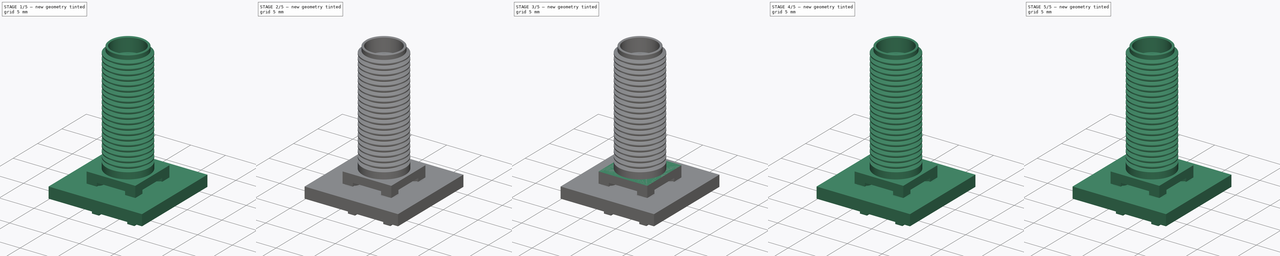
[diagram: build sequence overview — one tinted view per stage of 5, left to right]
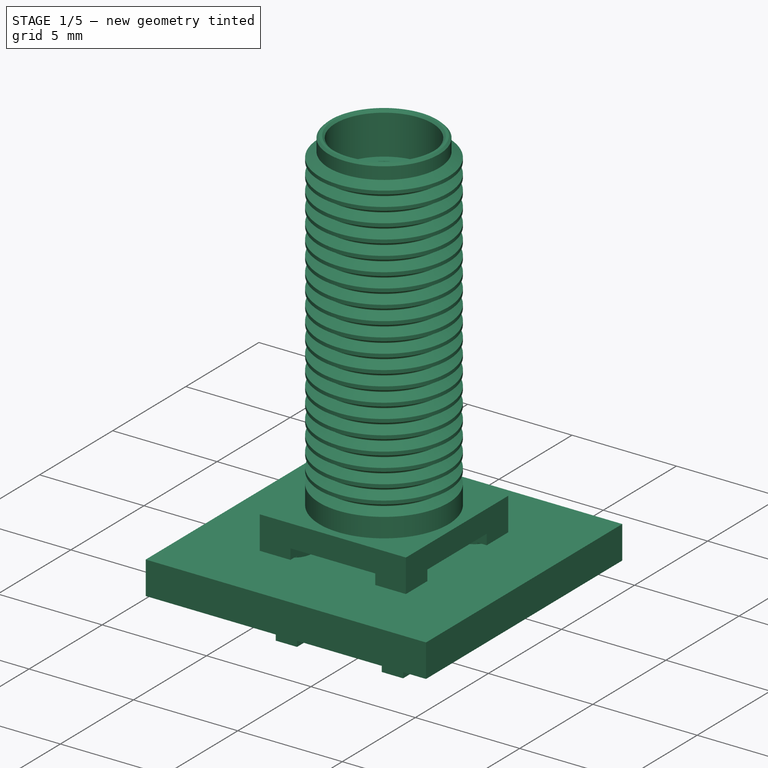
[diagram: stage 1 of 5 — iso view after this stage's code; geometry added in this stage tinted green]
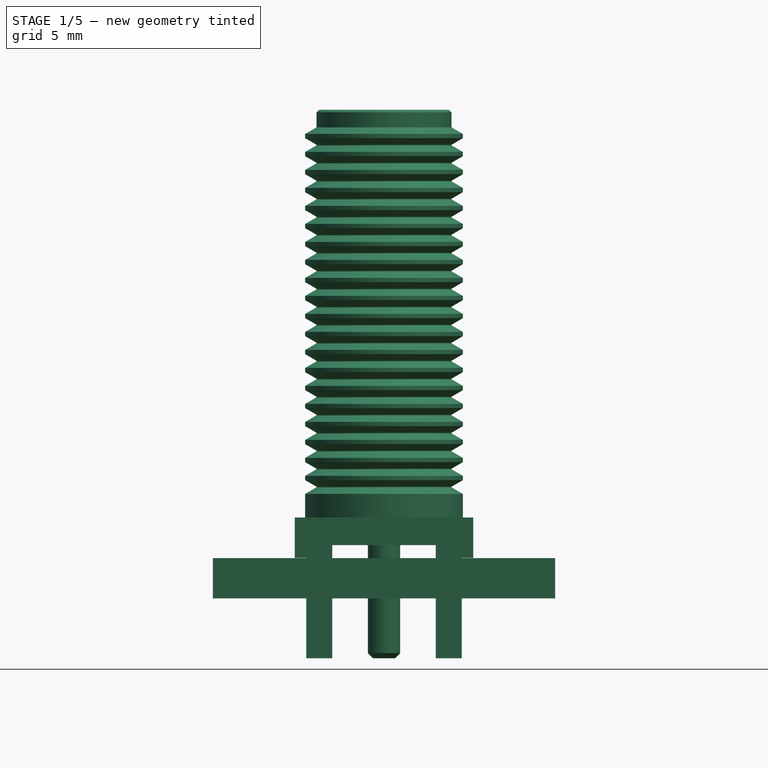
[diagram: stage 1 of 5 — front view after this stage's code; geometry added in this stage tinted green]
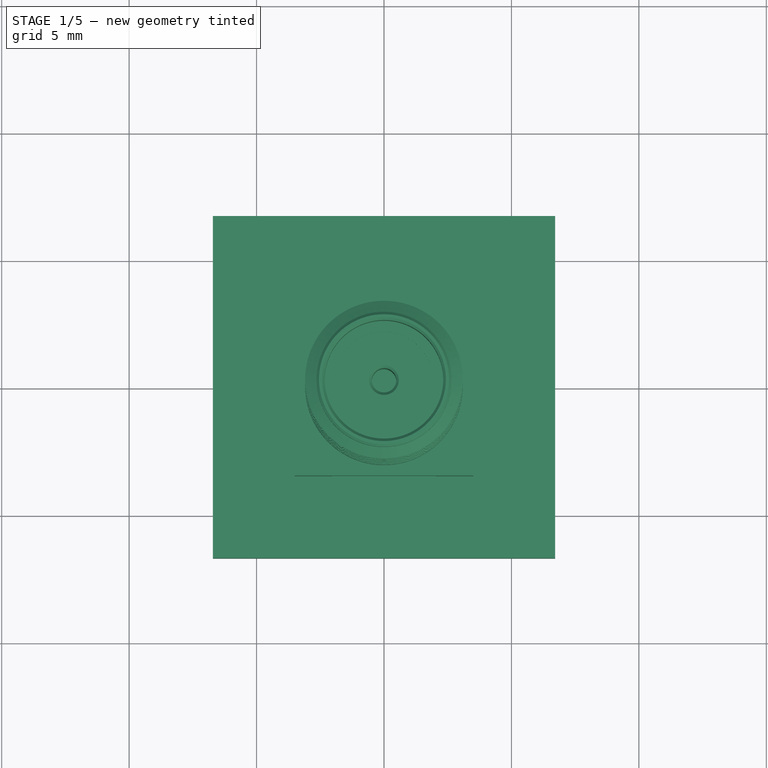
[diagram: stage 1 of 5 — top view after this stage's code; geometry added in this stage tinted green]
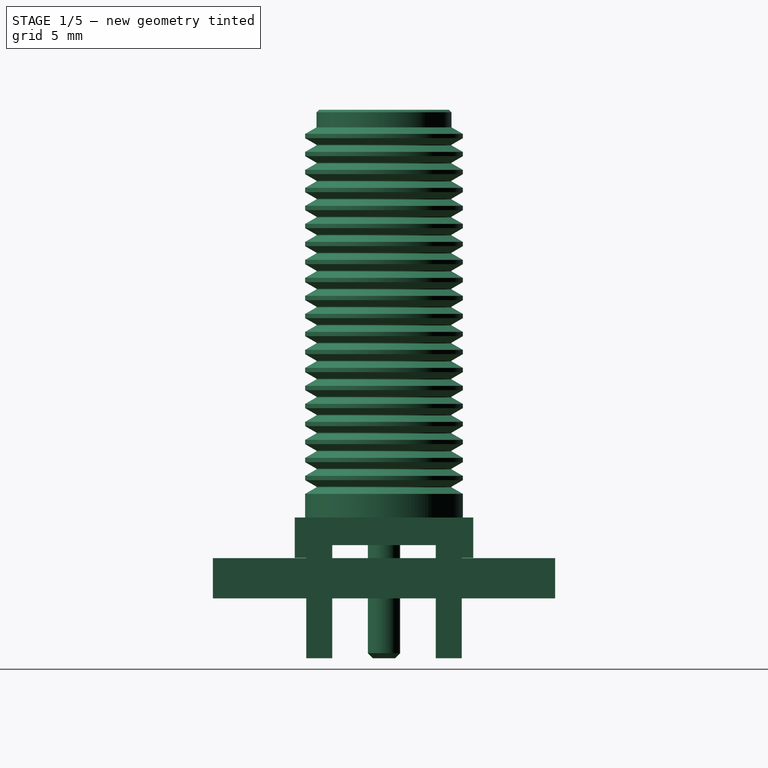
[diagram: stage 1 of 5 — right view after this stage's code; geometry added in this stage tinted green]
FCSTD DOCUMENT  (FreeCAD 0.17R13519 (Git))
Label: SMA_Amphenol_132291_Vertical
License: All rights reserved
LicenseURL: http://en.wikipedia.org/wiki/All_rights_reserved
objects: Sketcher::SketchObject×9, Part::FeaturePython×7, PartDesign::Pad×5, Part::Feature×4, PartDesign::Chamfer×3, PartDesign::Body×3, PartDesign::Pocket×2, PartDesign::Revolution×2, PartDesign::ShapeBinder×2, PartDesign::PolarPattern×1, App::Part×1, App::DocumentObjectGroup×1, Part::Compound×1, Part::MultiFuse×1
note: 49 computed .brp shape members not serialized (recipe doc carries the construction recipe); baked Part::Feature solids carry a one-line shape summary decoded from their .brp

FEATURE [Part::FeaturePython] THPs  label="PTHs"  # a2plus imported part (geometry in sourceFile) (typed FeaturePython)
  fixedPosition = true
FEATURE [Part::FeaturePython] newPCB  label="Pcb"  # a2plus imported part (geometry in sourceFile) (typed FeaturePython)
  fixedPosition = true
FEATURE [App::DocumentObjectGroup] SMA_Amphenol_132291_Vertical_fp
  Group = -> [FCrtYd_lines,FFab_lines,Filk_lines,TopPads,BotPads,THPs,newPCB]
FEATURE [Part::Feature] Revolution001_cp
  shape: bbox 7 x 7 x 21.52 mm, 138 faces (baked)
FEATURE [Part::Feature] Pad003_cp
  shape: bbox 4.06 x 4.06 x 0.1 mm, 4 faces (baked)
FEATURE [Part::Feature] Pad004_cp
  shape: bbox 3.8 x 3.8 x 0.5 mm, 4 faces (baked)
FEATURE [Part::Compound] SMA_Amphenol_132291_Vertical_Source_cp
  Links = -> [Revolution001_cp,Pad003_cp,Pad004_cp]
FEATURE [Part::MultiFuse] SMA_Amphenol_132291_Vertical_Source_mp_cp  label="SMA_Amphenol_132291_Vertical_Source_fd"
  Shapes = -> [SMA_Amphenol_132291_Vertical_Source_cp]
FEATURE [Part::Feature] Shape  label="SMA_Amphenol_132291_Vertical"
  shape: bbox 7 x 7 x 21.52 mm, 137 faces (baked)
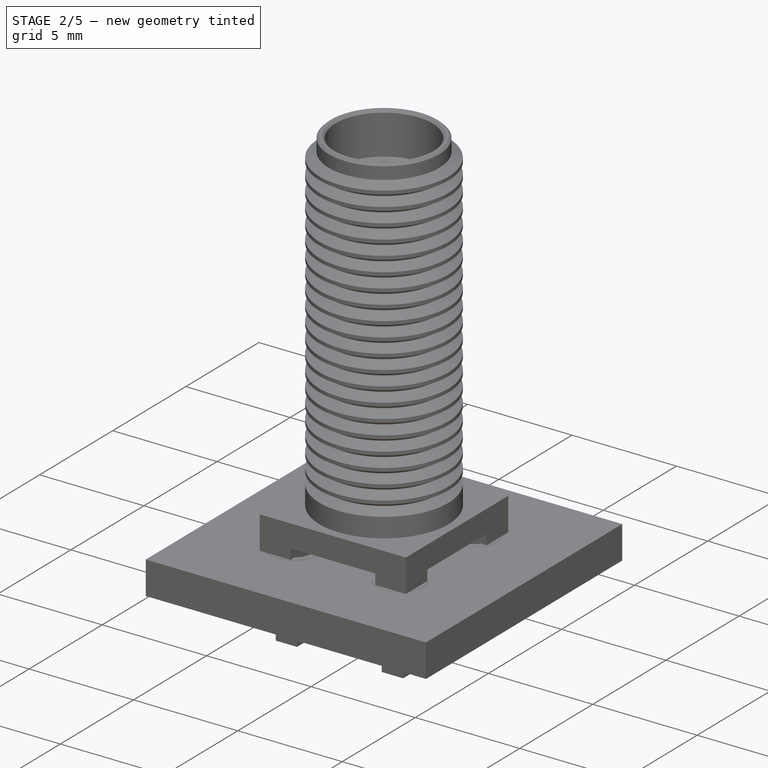
[diagram: stage 2 of 5 — iso view after this stage's code; geometry added in this stage tinted green]
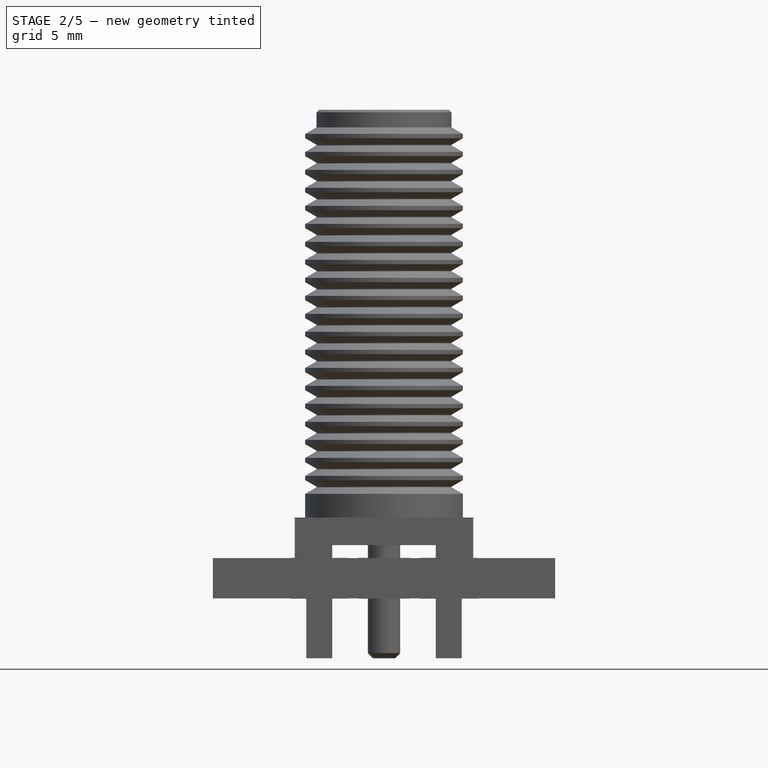
[diagram: stage 2 of 5 — front view after this stage's code; geometry added in this stage tinted green]
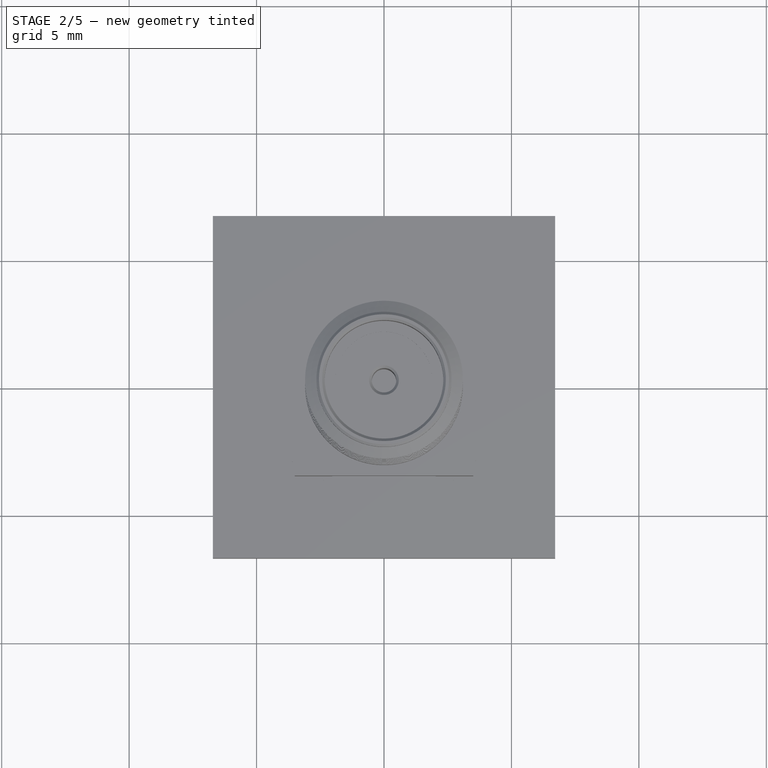
[diagram: stage 2 of 5 — top view after this stage's code; geometry added in this stage tinted green]
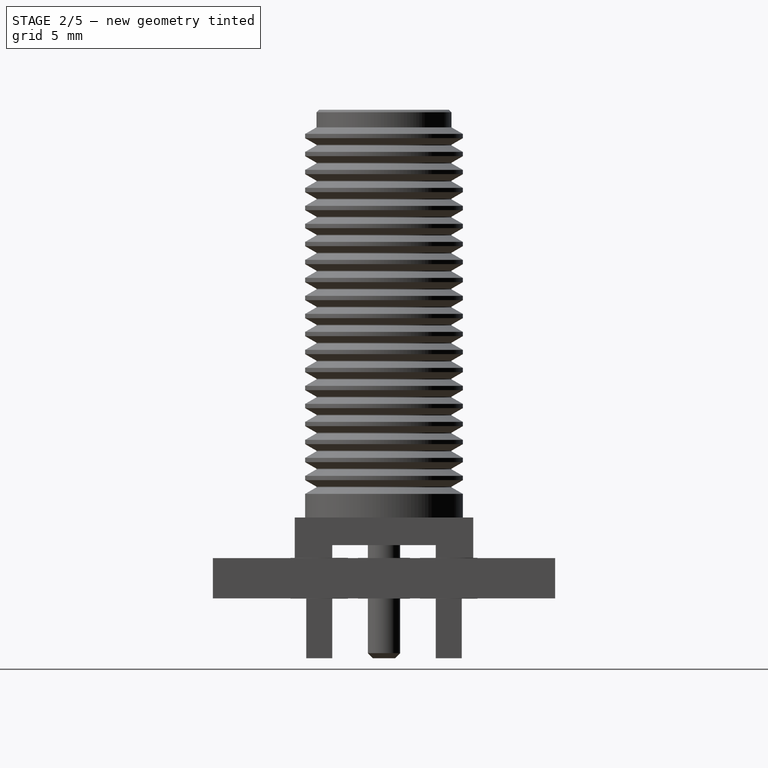
[diagram: stage 2 of 5 — right view after this stage's code; geometry added in this stage tinted green]
FEATURE [PartDesign::Body] Body  label="Metal"
  Group = -> [Sketch,Pad,Sketch001,Pocket,Sketch002,Pad001,PolarPattern,Sketch003,Pocket001,Sketch004,Pad002,Chamfer,Sketch005,Revolution,Chamfer001,Chamfer002,Sketch006,Revolution001]
  Origin = -> Origin
  Tip = -> Revolution001
FEATURE [PartDesign::ShapeBinder] CopyRevolution001
FEATURE [Sketcher::SketchObject] Sketch007
  ExternalGeometry = -> [CopyRevolution001]
  MapMode = 5
  Placement = pos=(0,0,0.7) rot=(1,0,0;3.14159rad)
  Support = -> [CopyRevolution001]
  sketch-geometry (2):
    g0: Circle CenterX=0 CenterY=0 CenterZ=0 NormalX=0 NormalY=0 NormalZ=1 AngleXU=0 Radius=0.635
    g1: Circle CenterX=0 CenterY=0 CenterZ=0 NormalX=0 NormalY=0 NormalZ=1 AngleXU=0 Radius=2.03
  constraints (4):
    c: Coincident(g0,g-1)
    c: Coincident(g1,g0)
    c: Equal(g0,g-3)
    c: Equal(g1,g-4)
FEATURE [PartDesign::Pad] Pad003
  Length = 0.1
  Length2 = 100
  Profile = -> Sketch007
  Type = 0
FEATURE [PartDesign::Body] Body001  label="Plastic_Bottom"
  Group = -> [CopyRevolution001,Sketch007,Pad003]
  Origin = -> Origin002
  Tip = -> Pad003
FEATURE [PartDesign::ShapeBinder] CopyRevolution001001
FEATURE [Sketcher::SketchObject] Sketch008
  ExternalGeometry = -> [CopyRevolution001001]
  MapMode = 5
  Placement = pos=(0,0,14.96) rot=(0,0,1;0rad)
  Support = -> [CopyRevolution001001]
  sketch-geometry (2):
    g0: Circle CenterX=0 CenterY=0 CenterZ=0 NormalX=0 NormalY=0 NormalZ=1 AngleXU=0 Radius=0.63
    g1: Circle CenterX=0 CenterY=0 CenterZ=0 NormalX=0 NormalY=0 NormalZ=1 AngleXU=0 Radius=1.9
  constraints (4):
    c: Coincident(g0,g-1)
    c: Coincident(g1,g0)
    c: Equal(g0,g-3)
    c: Equal(g1,g-4)
FEATURE [PartDesign::Pad] Pad004
  Length = 0.5
  Length2 = 100
  Profile = -> Sketch008
  Type = 0
FEATURE [PartDesign::Body] Body002  label="Plastic_Top"
  Group = -> [CopyRevolution001001,Sketch008,Pad004]
  Origin = -> Origin003
  Tip = -> Pad004
FEATURE [App::Part] Part  label="SMA_Amphenol_132291_Vertical_Source"
  Group = -> [Body,Body001,Body002]
  License = CC BY 3.0
  LicenseURL = http://creativecommons.org/licenses/by/3.0/
  Origin = -> Origin004
FEATURE [Part::FeaturePython] FCrtYd_lines  label="FCrtYd"  # a2plus imported part (geometry in sourceFile) (typed FeaturePython)
  fixedPosition = true
FEATURE [Part::FeaturePython] FFab_lines  label="FFab"  # a2plus imported part (geometry in sourceFile) (typed FeaturePython)
  fixedPosition = true
FEATURE [Part::FeaturePython] Filk_lines  label="FrontSilk"  # a2plus imported part (geometry in sourceFile) (typed FeaturePython)
  fixedPosition = true
FEATURE [Part::FeaturePython] TopPads  # a2plus imported part (geometry in sourceFile) (typed FeaturePython)
  fixedPosition = true
FEATURE [Part::FeaturePython] BotPads  # a2plus imported part (geometry in sourceFile) (typed FeaturePython)
  fixedPosition = true
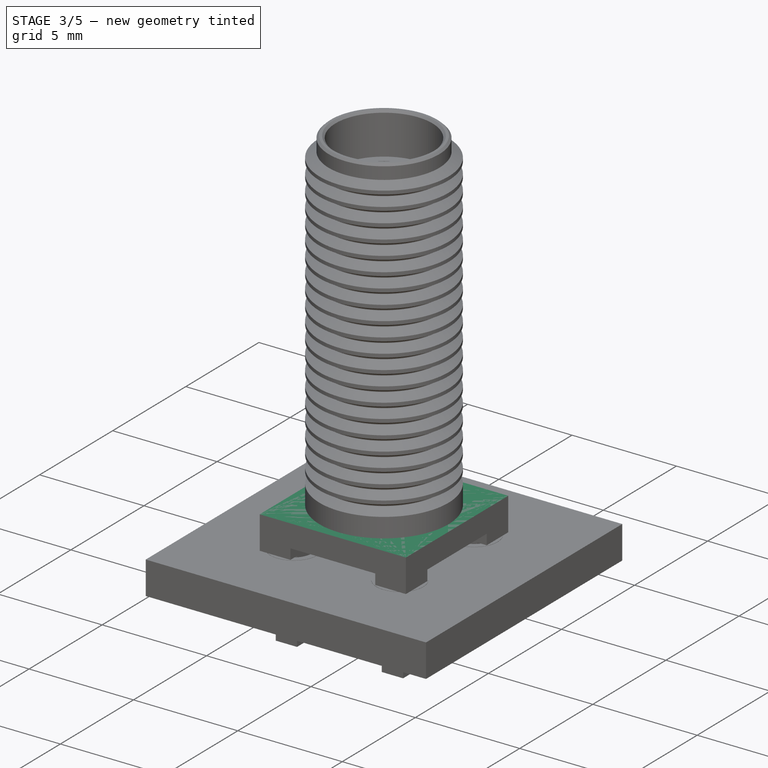
[diagram: stage 3 of 5 — iso view after this stage's code; geometry added in this stage tinted green]
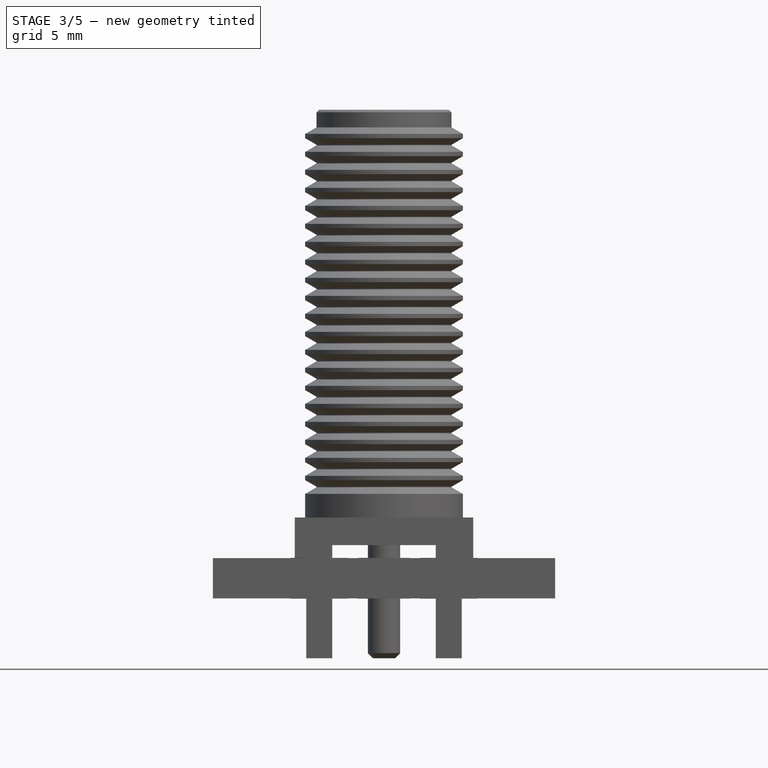
[diagram: stage 3 of 5 — front view after this stage's code; geometry added in this stage tinted green]
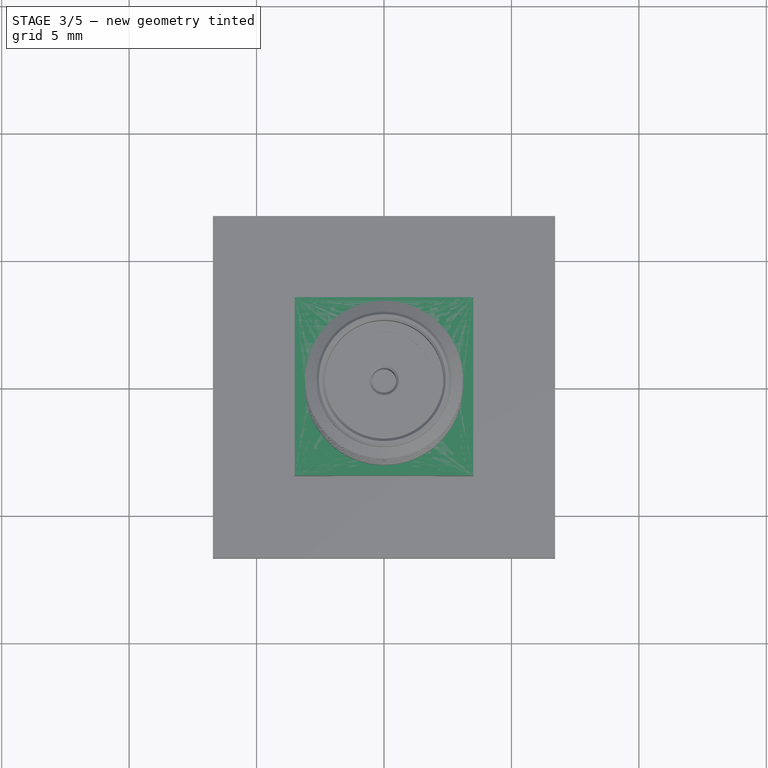
[diagram: stage 3 of 5 — top view after this stage's code; geometry added in this stage tinted green]
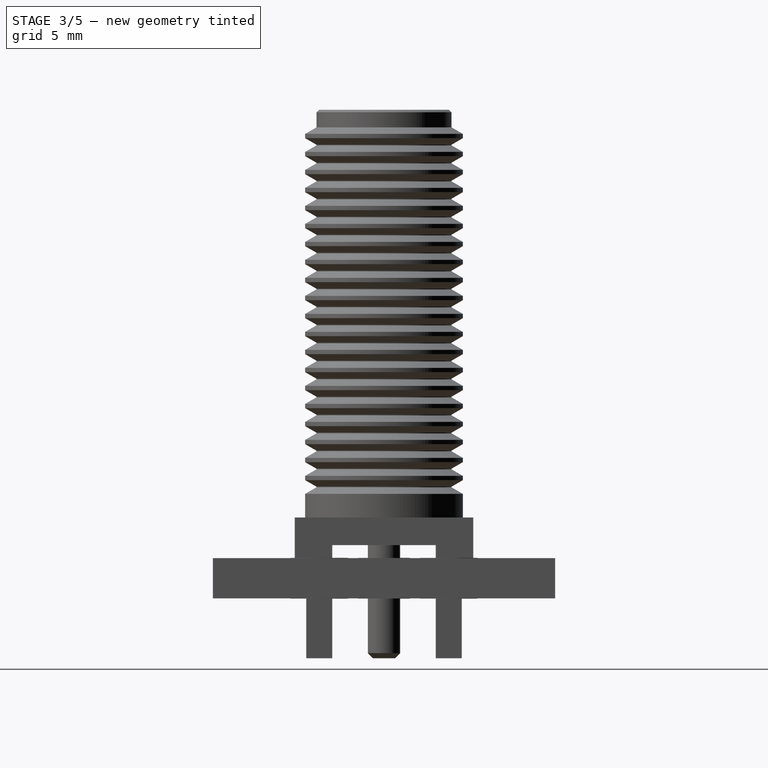
[diagram: stage 3 of 5 — right view after this stage's code; geometry added in this stage tinted green]
FEATURE [Sketcher::SketchObject] Sketch
  MapMode = 5
  Support = -> [XY_Plane]
  sketch-geometry (4):
    g0: LineSegment StartX=-3.5 StartY=3.5 StartZ=0 EndX=3.5 EndY=3.5 EndZ=0
    g1: LineSegment StartX=3.5 StartY=3.5 StartZ=0 EndX=3.5 EndY=-3.5 EndZ=0
    g2: LineSegment StartX=3.5 StartY=-3.5 StartZ=0 EndX=-3.5 EndY=-3.5 EndZ=0
    g3: LineSegment StartX=-3.5 StartY=-3.5 StartZ=0 EndX=-3.5 EndY=3.5 EndZ=0
  constraints (12):
    c: Coincident(g0,g1)
    c: Coincident(g1,g2)
    c: Coincident(g2,g3)
    c: Coincident(g3,g0)
    c: Horizontal(g0)
    c: Horizontal(g2)
    c: Vertical(g1)
    c: Vertical(g3)
    c: Symmetric(g0,g0,g-2)
    c: Symmetric(g2,g0,g-1)
    c: Equal(g0,g3)
    c: DistanceY(g3,g3) = 7
FEATURE [PartDesign::Pad] Pad  label="base"
  Length = 1.58
  Length2 = 100
  Profile = -> Sketch
  Type = 0
FEATURE [Sketcher::SketchObject] Sketch001
  ExternalGeometry = -> [Pad]
  MapMode = 5
  Placement = pos=(0,0,0) rot=(1,0,0;3.14159rad)
  Support = -> [Pad]
  sketch-geometry (12):
    g0: LineSegment StartX=-3.5 StartY=2.03 StartZ=0 EndX=-2.03 EndY=2.03 EndZ=0
    g1: LineSegment StartX=-2.03 StartY=2.03 StartZ=0 EndX=-2.03 EndY=3.5 EndZ=0
    g2: LineSegment StartX=-2.03 StartY=3.5 StartZ=0 EndX=2.03 EndY=3.5 EndZ=0
    g3: LineSegment StartX=2.03 StartY=3.5 StartZ=0 EndX=2.03 EndY=2.03 EndZ=0
    g4: LineSegment StartX=2.03 StartY=2.03 StartZ=0 EndX=3.5 EndY=2.03 EndZ=0
    g5: LineSegment StartX=3.5 StartY=2.03 StartZ=0 EndX=3.5 EndY=-2.03 EndZ=0
    g6: LineSegment StartX=3.5 StartY=-2.03 StartZ=0 EndX=2.03 EndY=-2.03 EndZ=0
    g7: LineSegment StartX=2.03 StartY=-2.03 StartZ=0 EndX=2.03 EndY=-3.5 EndZ=0
    g8: LineSegment StartX=2.03 StartY=-3.5 StartZ=0 EndX=-2.03 EndY=-3.5 EndZ=0
    g9: LineSegment StartX=-2.03 StartY=-3.5 StartZ=0 EndX=-2.03 EndY=-2.03 EndZ=0
    g10: LineSegment StartX=-2.03 StartY=-2.03 StartZ=0 EndX=-3.5 EndY=-2.03 EndZ=0
    g11: LineSegment StartX=-3.5 StartY=-2.03 StartZ=0 EndX=-3.5 EndY=2.03 EndZ=0
  constraints (36):
    c: Coincident(g0,g1)
    c: Vertical(g1)
    c: Coincident(g1,g2)
    c: Horizontal(g2)
    c: Coincident(g2,g3)
    c: Coincident(g3,g4)
    c: Coincident(g4,g5)
    c: Vertical(g5)
    c: Coincident(g5,g6)
    c: Coincident(g6,g7)
    c: Vertical(g7)
    c: Coincident(g7,g8)
    c: Horizontal(g8)
    c: Coincident(g8,g9)
    c: Vertical(g9)
    c: Coincident(g9,g10)
    c: Horizontal(g10)
    c: Coincident(g10,g11)
    c: Coincident(g11,g0)
    c: Vertical(g11)
    c: Vertical(g3)
    c: Horizontal(g0)
    c: Horizontal(g4)
    c: Horizontal(g6)
    c: PointOnObject(g0,g-4)
    c: PointOnObject(g1,g-3)
    c: PointOnObject(g4,g-5)
    c: PointOnObject(g7,g-6)
    c: Equal(g0,g1)
    c: Equal(g1,g3)
    c: Equal(g3,g4)
    c: Equal(g4,g6)
    c: Equal(g6,g7)
    c: Equal(g7,g9)
    c: Equal(g9,g10)
    c: DistanceY(g1,g1) = 1.47
FEATURE [PartDesign::Pocket] Pocket  label="Cross_Pocket"
  BaseFeature = -> Pad
  Length = 0.5
  Length2 = 100
  Profile = -> Sketch001
  Type = 0
FEATURE [Sketcher::SketchObject] Sketch002
  ExternalGeometry = -> [Pocket]
  MapMode = 5
  Placement = pos=(0,0,0) rot=(1,0,0;3.14159rad)
  Support = -> [Pocket]
  sketch-geometry (4):
    g0: LineSegment StartX=-2.03 StartY=2.03 StartZ=0 EndX=-3.05 EndY=2.03 EndZ=0
    g1: LineSegment StartX=-3.05 StartY=2.03 StartZ=0 EndX=-3.05 EndY=3.05 EndZ=0
    g2: LineSegment StartX=-3.05 StartY=3.05 StartZ=0 EndX=-2.03 EndY=3.05 EndZ=0
    g3: LineSegment StartX=-2.03 StartY=3.05 StartZ=0 EndX=-2.03 EndY=2.03 EndZ=0
  constraints (11):
    c: Coincident(g0,g1)
    c: Coincident(g1,g2)
    c: Coincident(g2,g3)
    c: Coincident(g3,g0)
    c: Horizontal(g0)
    c: Horizontal(g2)
    c: Vertical(g1)
    c: Vertical(g3)
    c: Coincident(g0,g-4)
    c: Equal(g2,g1)
    c: DistanceY(g1,g1) = 1.02
FEATURE [PartDesign::Pad] Pad001
  BaseFeature = -> Pocket
  Length = 3.94
  Length2 = 100
  Profile = -> Sketch002
  Type = 0
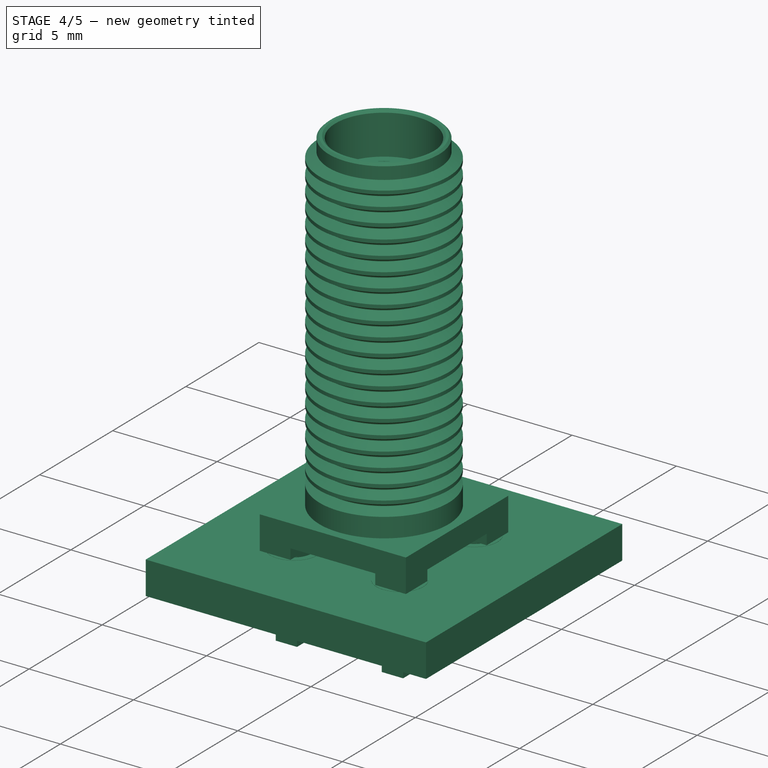
[diagram: stage 4 of 5 — iso view after this stage's code; geometry added in this stage tinted green]
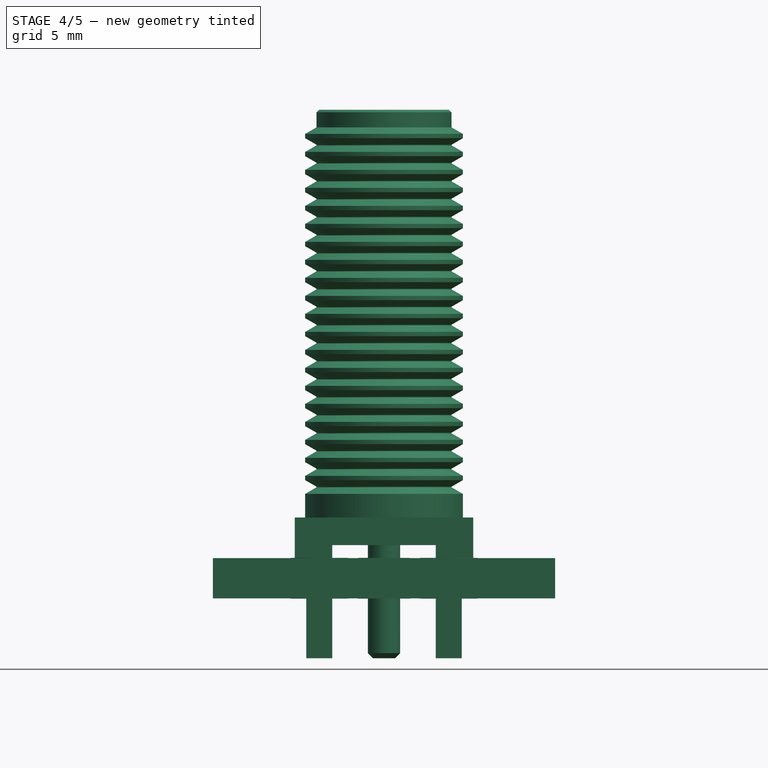
[diagram: stage 4 of 5 — front view after this stage's code; geometry added in this stage tinted green]
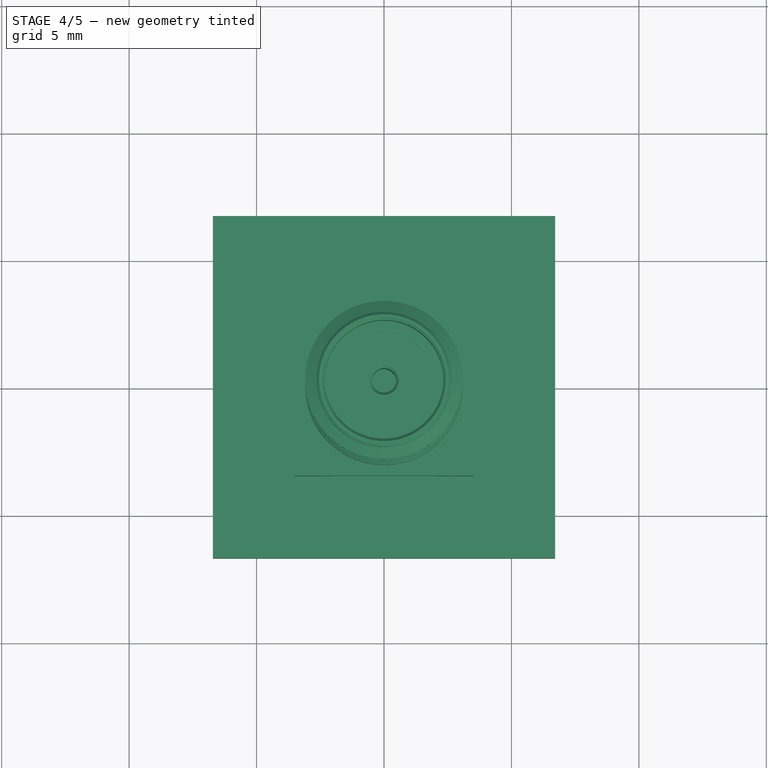
[diagram: stage 4 of 5 — top view after this stage's code; geometry added in this stage tinted green]
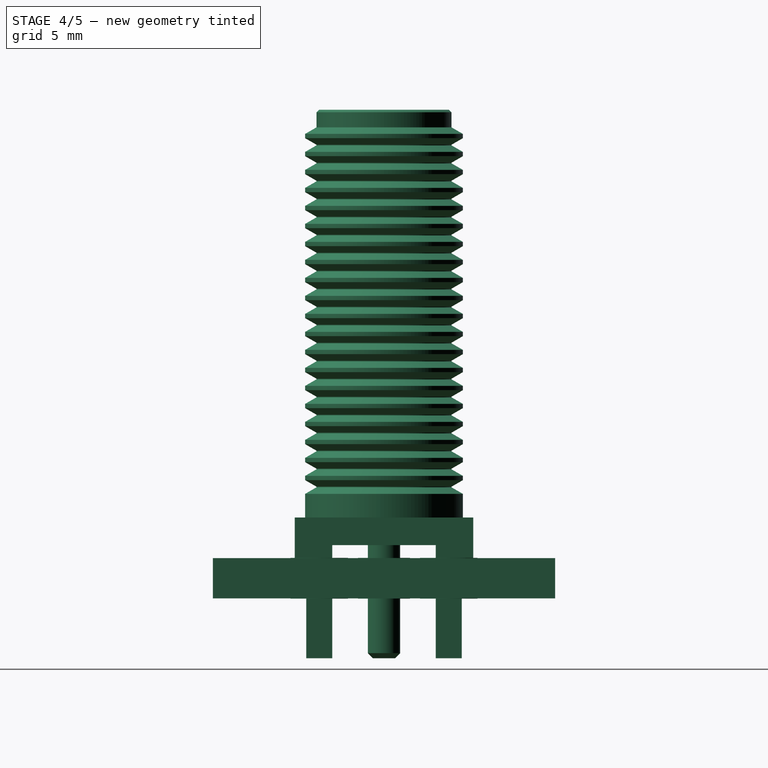
[diagram: stage 4 of 5 — right view after this stage's code; geometry added in this stage tinted green]
FEATURE [PartDesign::PolarPattern] PolarPattern
  Angle = 360
  Axis = -> Sketch002 [N_Axis]
  BaseFeature = -> Pad001
  Occurrences = 4
  Originals = -> [Pad001]
FEATURE [Sketcher::SketchObject] Sketch003
  MapMode = 5
  Placement = pos=(0,0,0.5) rot=(1,0,0;3.14159rad)
  Support = -> [PolarPattern]
  sketch-geometry (1):
    g0: Circle CenterX=0 CenterY=0 CenterZ=0 NormalX=0 NormalY=0 NormalZ=1 AngleXU=0 Radius=2.03
  constraints (2):
    c: Coincident(g0,g-1)
    c: Radius(g0) = 2.03
FEATURE [PartDesign::Pocket] Pocket001
  BaseFeature = -> PolarPattern
  Length = 0.2
  Length2 = 100
  Profile = -> Sketch003
  Type = 0
FEATURE [Sketcher::SketchObject] Sketch004
  MapMode = 5
  Placement = pos=(0,0,0.7) rot=(1,0,0;3.14159rad)
  Support = -> [Pocket001]
  sketch-geometry (1):
    g0: Circle CenterX=0 CenterY=0 CenterZ=0 NormalX=0 NormalY=0 NormalZ=1 AngleXU=0 Radius=0.635
  constraints (2):
    c: Coincident(g0,g-1)
    c: Radius(g0) = 0.635
FEATURE [PartDesign::Pad] Pad002
  BaseFeature = -> Pocket001
  Length = 4.64
  Length2 = 100
  Profile = -> Sketch004
  Type = 0
FEATURE [PartDesign::Chamfer] Chamfer
  Base = -> Pad002 [Edge102]
  BaseFeature = -> Pad002
  Size = 0.2
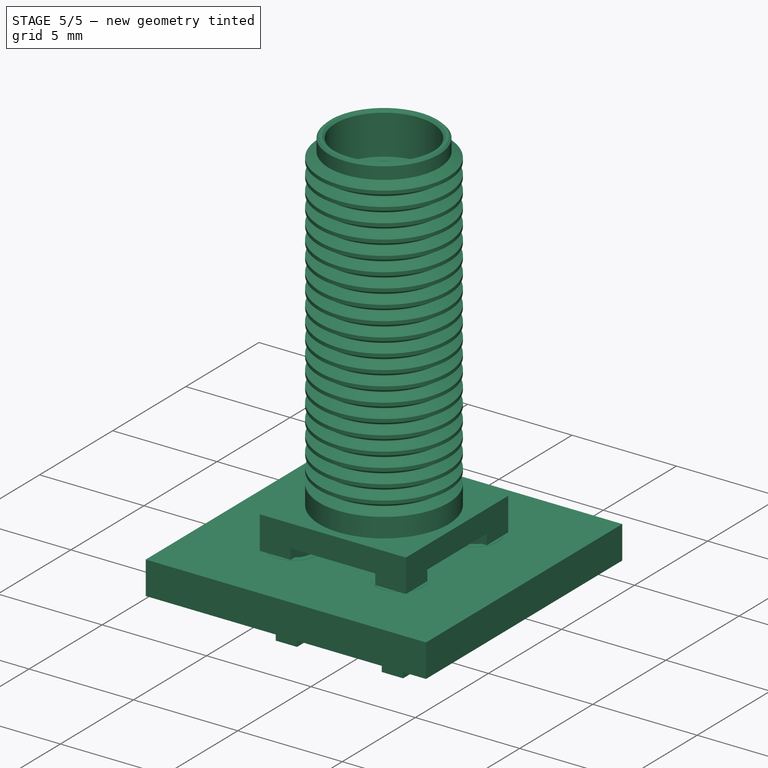
[diagram: stage 5 of 5 — iso view after this stage's code; geometry added in this stage tinted green]
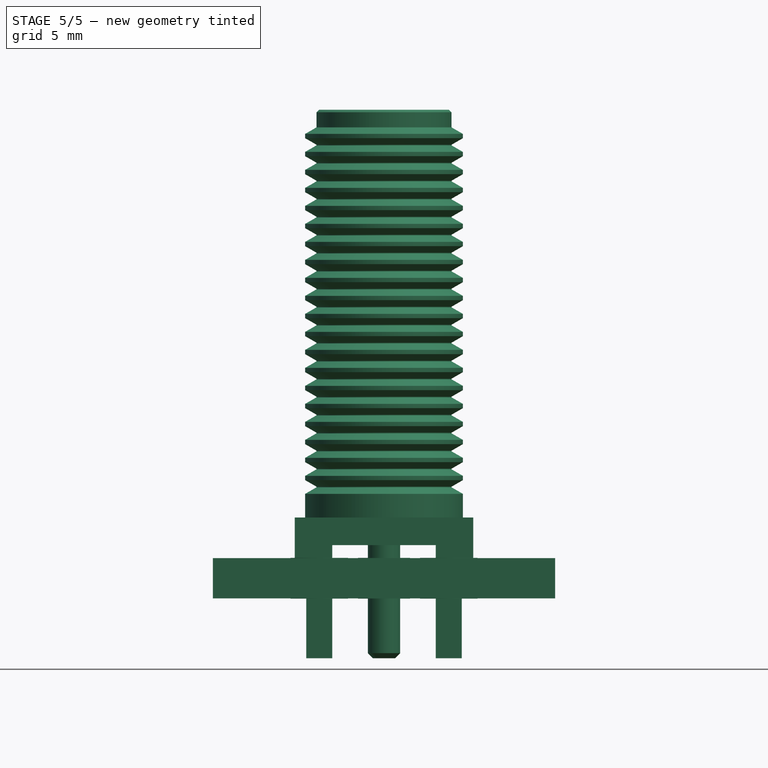
[diagram: stage 5 of 5 — front view after this stage's code; geometry added in this stage tinted green]
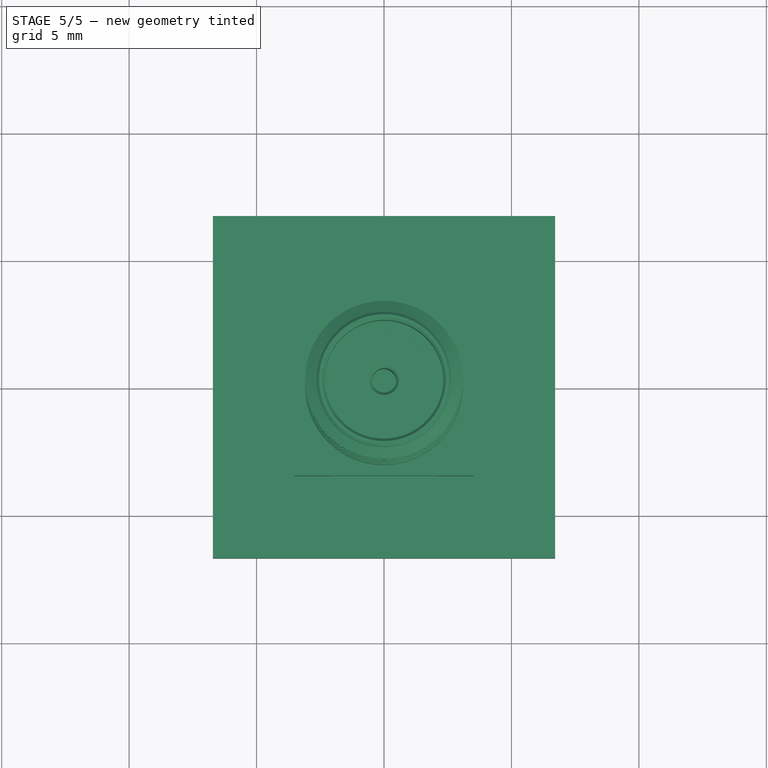
[diagram: stage 5 of 5 — top view after this stage's code; geometry added in this stage tinted green]
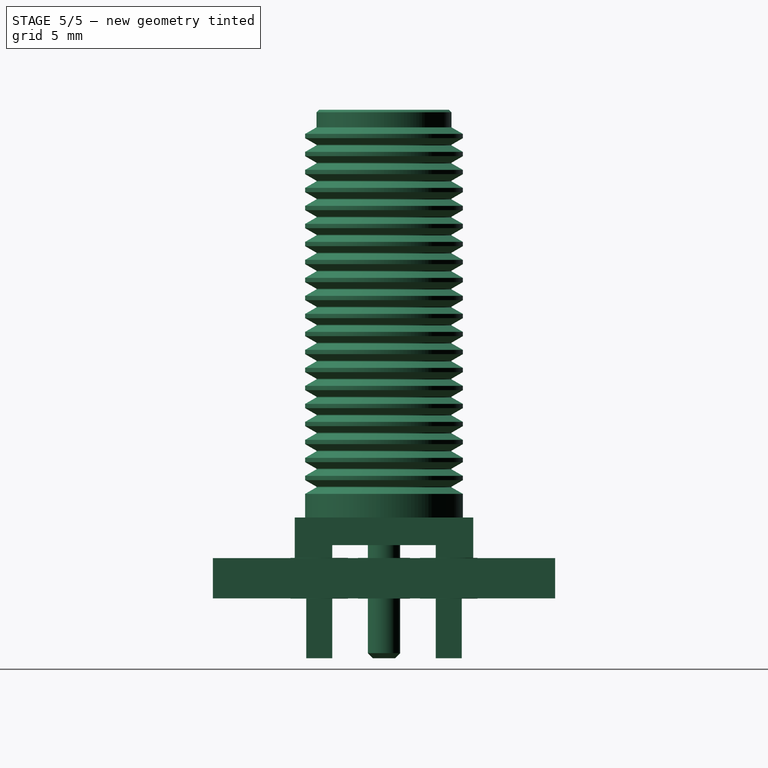
[diagram: stage 5 of 5 — right view after this stage's code; geometry added in this stage tinted green]
FEATURE [Sketcher::SketchObject] Sketch005
  ExternalGeometry = -> [Chamfer]
  Placement = pos=(0,0,0) rot=(1,0,0;1.5708rad)
  sketch-geometry (14):
    g0: LineSegment StartX=0 StartY=1.58 StartZ=0 EndX=0 EndY=12.26 EndZ=0
    g1: LineSegment StartX=0 StartY=12.26 StartZ=0 EndX=0.48 EndY=12.26 EndZ=0
    g2: LineSegment StartX=0.48 StartY=12.26 StartZ=0 EndX=0.48 EndY=15.46 EndZ=0
    g3: LineSegment StartX=0.48 StartY=15.46 StartZ=0 EndX=0.63 EndY=15.46 EndZ=0
    g4: LineSegment StartX=0.63 StartY=15.46 StartZ=0 EndX=0.63 EndY=14.96 EndZ=0
    g5: LineSegment StartX=0.63 StartY=14.96 StartZ=0 EndX=1.9 EndY=14.96 EndZ=0
    g6: LineSegment StartX=1.9 StartY=14.96 StartZ=0 EndX=1.9 EndY=15.58 EndZ=0
    g7: LineSegment StartX=0 StartY=1.58 StartZ=0 EndX=3.095 EndY=1.58 EndZ=0
    g8: LineSegment StartX=1.9 StartY=15.58 StartZ=0 EndX=2.325 EndY=15.58 EndZ=0
    g9: LineSegment StartX=2.325 StartY=15.58 StartZ=0 EndX=2.325 EndY=17.58 EndZ=0
    g10: LineSegment StartX=2.325 StartY=17.58 StartZ=0 EndX=2.65 EndY=17.58 EndZ=0
    g11: LineSegment StartX=2.65 StartY=17.58 StartZ=0 EndX=2.65 EndY=2.76692 EndZ=0
    g12: LineSegment StartX=2.65 StartY=2.76692 StartZ=0 EndX=3.095 EndY=2.51 EndZ=0
    g13: LineSegment StartX=3.095 StartY=2.51 StartZ=0 EndX=3.095 EndY=1.58 EndZ=0
  constraints (42):
    c: PointOnObject(g0,g-3)
    c: PointOnObject(g0,g-2)
    c: Vertical(g0)
    c: Coincident(g1,g0)
    c: Horizontal(g1)
    c: Coincident(g1,g2)
    c: Vertical(g2)
    c: Coincident(g2,g3)
    c: Coincident(g3,g4)
    c: Vertical(g4)
    c: Coincident(g4,g5)
    c: Horizontal(g5)
    c: Coincident(g5,g6)
    c: Vertical(g6)
    c: PointOnObject(g7,g-3)
    c: Coincident(g0,g7)
    c: DistanceY(g7,g10) = 16
    c: Horizontal(g3)
    c: DistanceY(g2,g2) = 3.2
    c: DistanceX(g-1,g10) = 2.65
    c: DistanceY(g6,g6) = 0.62
    c: DistanceX(g1,g1) = 0.48
    c: DistanceY(g3,g6) = 0.12
    c: DistanceX(g-1,g3) = 0.63
    c: Coincident(g6,g8)
    c: Horizontal(g8)
    c: Coincident(g8,g9)
    c: Vertical(g9)
    c: Coincident(g9,g10)
    c: Horizontal(g10)
    c: DistanceY(g9,g9) = 2
    c: DistanceX(g-1,g6) = 1.9
    c: DistanceX(g-1,g9) = 2.325
    c: Coincident(g10,g11)
    c: Vertical(g11)
    c: Coincident(g11,g12)
    c: Coincident(g12,g13)
    c: Vertical(g13)
    c: DistanceY(g13,g13) = 0.93
    c: DistanceX(g-1,g12) = 3.095
    c: Coincident(g7,g13)
    c: Angle(g12,g7) = 0.523599
FEATURE [PartDesign::Revolution] Revolution
  Angle = 360
  Axis = (0,0,1)
  Base = (0,0,0)
  BaseFeature = -> Chamfer
  Profile = -> Sketch005
  ReferenceAxis = -> Sketch005 [V_Axis]
  Reversed = true
FEATURE [PartDesign::Chamfer] Chamfer001
  Base = -> Revolution [Edge112,Edge110]
  BaseFeature = -> Revolution
  Size = 0.1
FEATURE [PartDesign::Chamfer] Chamfer002
  Base = -> Chamfer001 [Edge123]
  BaseFeature = -> Chamfer001
  Size = 0.1
FEATURE [Sketcher::SketchObject] Sketch006
  ExternalGeometry = -> [Chamfer002]
  MapMode = 5
  Placement = pos=(0,0,0) rot=(1,0,0;1.5708rad)
  Support = -> [XZ_Plane]
  sketch-geometry (80):
    g0: LineSegment StartX=2.65 StartY=2.79156 StartZ=0 EndX=3.095 EndY=3.04848 EndZ=0
    g1: LineSegment StartX=3.095 StartY=3.04848 StartZ=0 EndX=3.095 EndY=3.21612 EndZ=0
    g2: LineSegment StartX=3.095 StartY=3.21612 StartZ=0 EndX=2.65 EndY=3.47304 EndZ=0
    g3: LineSegment StartX=2.65 StartY=2.79156 StartZ=0 EndX=2.65 EndY=3.47304 EndZ=0
    g4: LineSegment StartX=2.65 StartY=3.49768 StartZ=0 EndX=3.095 EndY=3.7546 EndZ=0
    g5: LineSegment StartX=3.095 StartY=3.7546 StartZ=0 EndX=3.095 EndY=3.92224 EndZ=0
    g6: LineSegment StartX=3.095 StartY=3.92224 StartZ=0 EndX=2.65 EndY=4.17916 EndZ=0
    g7: LineSegment StartX=2.65 StartY=3.49768 StartZ=0 EndX=2.65 EndY=4.17916 EndZ=0
    g8: LineSegment StartX=2.65 StartY=4.2038 StartZ=0 EndX=3.095 EndY=4.46072 EndZ=0
    g9: LineSegment StartX=3.095 StartY=4.46072 StartZ=0 EndX=3.095 EndY=4.62836 EndZ=0
    g10: LineSegment StartX=3.095 StartY=4.62836 StartZ=0 EndX=2.65 EndY=4.88528 EndZ=0
    g11: LineSegment StartX=2.65 StartY=4.2038 StartZ=0 EndX=2.65 EndY=4.88528 EndZ=0
    g12: LineSegment StartX=2.65 StartY=4.90992 StartZ=0 EndX=3.095 EndY=5.16684 EndZ=0
    g13: LineSegment StartX=3.095 StartY=5.16684 StartZ=0 EndX=3.095 EndY=5.33448 EndZ=0
    g14: LineSegment StartX=3.095 StartY=5.33448 StartZ=0 EndX=2.65 EndY=5.5914 EndZ=0
    g15: LineSegment StartX=2.65 StartY=4.90992 StartZ=0 EndX=2.65 EndY=5.5914 EndZ=0
    g16: LineSegment StartX=2.65 StartY=5.61604 StartZ=0 EndX=3.095 EndY=5.87296 EndZ=0
    g17: LineSegment StartX=3.095 StartY=5.87296 StartZ=0 EndX=3.095 EndY=6.0406 EndZ=0
    g18: LineSegment StartX=3.095 StartY=6.0406 StartZ=0 EndX=2.65 EndY=6.29752 EndZ=0
    g19: LineSegment StartX=2.65 StartY=5.61604 StartZ=0 EndX=2.65 EndY=6.29752 EndZ=0
    g20: LineSegment StartX=2.65 StartY=6.32216 StartZ=0 EndX=3.095 EndY=6.57908 EndZ=0
    g21: LineSegment StartX=3.095 StartY=6.57908 StartZ=0 EndX=3.095 EndY=6.74672 EndZ=0
    g22: LineSegment StartX=3.095 StartY=6.74672 StartZ=0 EndX=2.65 EndY=7.00364 EndZ=0
    g23: LineSegment StartX=2.65 StartY=6.32216 StartZ=0 EndX=2.65 EndY=7.00364 EndZ=0
    g24: LineSegment StartX=2.65 StartY=7.7344 StartZ=0 EndX=3.095 EndY=7.99132 EndZ=0
    g25: LineSegment StartX=3.095 StartY=7.99132 StartZ=0 EndX=3.095 EndY=8.15896 EndZ=0
    g26: LineSegment StartX=3.095 StartY=8.15896 StartZ=0 EndX=2.65 EndY=8.41588 EndZ=0
    g27: LineSegment StartX=2.65 StartY=7.7344 StartZ=0 EndX=2.65 EndY=8.41588 EndZ=0
    g28: LineSegment StartX=2.65 StartY=7.02828 StartZ=0 EndX=3.095 EndY=7.2852 EndZ=0
    g29: LineSegment StartX=3.095 StartY=7.2852 StartZ=0 EndX=3.095 EndY=7.45284 EndZ=0
    g30: LineSegment StartX=3.095 StartY=7.45284 StartZ=0 EndX=2.65 EndY=7.70976 EndZ=0
    g31: LineSegment StartX=2.65 StartY=7.02828 StartZ=0 EndX=2.65 EndY=7.70976 EndZ=0
    g32: LineSegment StartX=2.65 StartY=8.44052 StartZ=0 EndX=3.095 EndY=8.69744 EndZ=0
    g33: LineSegment StartX=3.095 StartY=8.69744 StartZ=0 EndX=3.095 EndY=8.86508 EndZ=0
    g34: LineSegment StartX=3.095 StartY=8.86508 StartZ=0 EndX=2.65 EndY=9.122 EndZ=0
    g35: LineSegment StartX=2.65 StartY=8.44052 StartZ=0 EndX=2.65 EndY=9.122 EndZ=0
    g36: LineSegment StartX=2.65 StartY=9.14664 StartZ=0 EndX=3.095 EndY=9.40356 EndZ=0
    g37: LineSegment StartX=3.095 StartY=9.40356 StartZ=0 EndX=3.095 EndY=9.5712 EndZ=0
    g38: LineSegment StartX=3.095 StartY=9.5712 StartZ=0 EndX=2.65 EndY=9.82812 EndZ=0
    g39: LineSegment StartX=2.65 StartY=9.14664 StartZ=0 EndX=2.65 EndY=9.82812 EndZ=0
    g40: LineSegment StartX=2.65 StartY=10.5589 StartZ=0 EndX=3.095 EndY=10.8158 EndZ=0
    g41: LineSegment StartX=3.095 StartY=10.8158 StartZ=0 EndX=3.095 EndY=10.9834 EndZ=0
    g42: LineSegment StartX=3.095 StartY=10.9834 StartZ=0 EndX=2.65 EndY=11.2404 EndZ=0
    g43: LineSegment StartX=2.65 StartY=10.5589 StartZ=0 EndX=2.65 EndY=11.2404 EndZ=0
    g44: LineSegment StartX=2.65 StartY=9.85276 StartZ=0 EndX=3.095 EndY=10.1097 EndZ=0
    g45: LineSegment StartX=3.095 StartY=10.1097 StartZ=0 EndX=3.095 EndY=10.2773 EndZ=0
    g46: LineSegment StartX=3.095 StartY=10.2773 StartZ=0 EndX=2.65 EndY=10.5342 EndZ=0
    g47: LineSegment StartX=2.65 StartY=9.85276 StartZ=0 EndX=2.65 EndY=10.5342 EndZ=0
    g48: LineSegment StartX=2.65 StartY=11.9711 StartZ=0 EndX=3.095 EndY=12.228 EndZ=0
    g49: LineSegment StartX=3.095 StartY=12.228 StartZ=0 EndX=3.095 EndY=12.3957 EndZ=0
    g50: LineSegment StartX=3.095 StartY=12.3957 StartZ=0 EndX=2.65 EndY=12.6526 EndZ=0
    g51: LineSegment StartX=2.65 StartY=11.9711 StartZ=0 EndX=2.65 EndY=12.6526 EndZ=0
    g52: LineSegment StartX=2.65 StartY=11.265 StartZ=0 EndX=3.095 EndY=11.5219 EndZ=0
    g53: LineSegment StartX=3.095 StartY=11.5219 StartZ=0 EndX=3.095 EndY=11.6896 EndZ=0
    g54: LineSegment StartX=3.095 StartY=11.6896 StartZ=0 EndX=2.65 EndY=11.9465 EndZ=0
    g55: LineSegment StartX=2.65 StartY=11.265 StartZ=0 EndX=2.65 EndY=11.9465 EndZ=0
    g56: LineSegment StartX=2.65 StartY=12.6772 StartZ=0 EndX=3.095 EndY=12.9342 EndZ=0
    g57: LineSegment StartX=3.095 StartY=12.9342 StartZ=0 EndX=3.095 EndY=13.1018 EndZ=0
    g58: LineSegment StartX=3.095 StartY=13.1018 StartZ=0 EndX=2.65 EndY=13.3587 EndZ=0
    g59: LineSegment StartX=2.65 StartY=12.6772 StartZ=0 EndX=2.65 EndY=13.3587 EndZ=0
    g60: LineSegment StartX=2.65 StartY=13.3834 StartZ=0 EndX=3.095 EndY=13.6403 EndZ=0
    g61: LineSegment StartX=3.095 StartY=13.6403 StartZ=0 EndX=3.095 EndY=13.8079 EndZ=0
    g62: LineSegment StartX=3.095 StartY=13.8079 StartZ=0 EndX=2.65 EndY=14.0648 EndZ=0
    g63: LineSegment StartX=2.65 StartY=13.3834 StartZ=0 EndX=2.65 EndY=14.0648 EndZ=0
    g64: LineSegment StartX=2.65 StartY=14.0895 StartZ=0 EndX=3.095 EndY=14.3464 EndZ=0
    g65: LineSegment StartX=3.095 StartY=14.3464 StartZ=0 EndX=3.095 EndY=14.514 EndZ=0
    g66: LineSegment StartX=3.095 StartY=14.514 StartZ=0 EndX=2.65 EndY=14.771 EndZ=0
    g67: LineSegment StartX=2.65 StartY=14.0895 StartZ=0 EndX=2.65 EndY=14.771 EndZ=0
    g68: LineSegment StartX=2.65 StartY=15.5017 StartZ=0 EndX=3.095 EndY=15.7586 EndZ=0
    g69: LineSegment StartX=3.095 StartY=15.7586 StartZ=0 EndX=3.095 EndY=15.9263 EndZ=0
    g70: LineSegment StartX=3.095 StartY=15.9263 StartZ=0 EndX=2.65 EndY=16.1832 EndZ=0
    g71: LineSegment StartX=2.65 StartY=15.5017 StartZ=0 EndX=2.65 EndY=16.1832 EndZ=0
    g72: LineSegment StartX=2.65 StartY=16.2078 StartZ=0 EndX=3.095 EndY=16.4648 EndZ=0
    g73: LineSegment StartX=3.095 StartY=16.4648 StartZ=0 EndX=3.095 EndY=16.6324 EndZ=0
    g74: LineSegment StartX=3.095 StartY=16.6324 StartZ=0 EndX=2.65 EndY=16.8893 EndZ=0
    g75: LineSegment StartX=2.65 StartY=16.2078 StartZ=0 EndX=2.65 EndY=16.8893 EndZ=0
    g76: LineSegment StartX=2.65 StartY=14.7956 StartZ=0 EndX=3.095 EndY=15.0525 EndZ=0
    g77: LineSegment StartX=3.095 StartY=15.0525 StartZ=0 EndX=3.095 EndY=15.2202 EndZ=0
    g78: LineSegment StartX=3.095 StartY=15.2202 StartZ=0 EndX=2.65 EndY=15.4771 EndZ=0
    g79: LineSegment StartX=2.65 StartY=14.7956 StartZ=0 EndX=2.65 EndY=15.4771 EndZ=0
  constraints (240):
    c: PointOnObject(g0,g-3)
    c: PointOnObject(g4,g-3)
    c: PointOnObject(g2,g-3)
    c: PointOnObject(g6,g-3)
    c: PointOnObject(g8,g-3)
    c: PointOnObject(g10,g-3)
    c: Vertical(g1)
    c: Vertical(g5)
    c: Vertical(g9)
    c: Vertical(g8,g0)
    c: Coincident(g8,g9)
    c: Coincident(g10,g9)
    c: Coincident(g10,g11)
    c: Coincident(g8,g11)
    c: Coincident(g2,g1)
    c: Coincident(g4,g5)
    c: Coincident(g5,g6)
    c: Coincident(g6,g7)
    c: Coincident(g2,g3)
    c: Coincident(g7,g4)
    c: Coincident(g0,g3)
    c: Vertical(g0,g4)
    c: Angle(g1,g0) = 2.0944
    c: Angle(g2,g1) = 2.0944
    c: Angle(g5,g4) = 2.0944
    c: Angle(g6,g5) = 2.0944
    c: Angle(g9,g8) = 2.0944
    c: Angle(g10,g9) = 2.0944
    c: DistanceY(g0,g4) = 0.70612
    c: DistanceY(g4,g8) = 0.70612
    c: DistanceY(g-4,g1) = 0.70612
    c: DistanceY(g1,g1) = 0.16764
    c: Vertical(g13)
    c: Coincident(g12,g13)
    c: Coincident(g14,g13)
    c: Coincident(g14,g15)
    c: Coincident(g12,g15)
    c: Angle(g13,g12) = 2.0944
    c: Angle(g14,g13) = 2.0944
    c: Vertical(g17)
    c: Coincident(g16,g17)
    c: Coincident(g18,g17)
    c: Coincident(g18,g19)
    c: Coincident(g16,g19)
    c: Angle(g17,g16) = 2.0944
    c: Angle(g18,g17) = 2.0944
    c: Vertical(g21)
    c: Coincident(g20,g21)
    c: Coincident(g22,g21)
    c: Coincident(g22,g23)
    c: Coincident(g20,g23)
    c: Angle(g21,g20) = 2.0944
    c: Angle(g22,g21) = 2.0944
    c: Vertical(g25)
    c: Coincident(g24,g25)
    c: Coincident(g26,g25)
    c: Coincident(g26,g27)
    c: Coincident(g24,g27)
    c: Angle(g25,g24) = 2.0944
    c: Angle(g26,g25) = 2.0944
    c: Vertical(g29)
    c: Coincident(g28,g29)
    c: Coincident(g30,g29)
    c: Coincident(g30,g31)
    c: Coincident(g28,g31)
    c: Angle(g29,g28) = 2.0944
    c: Angle(g30,g29) = 2.0944
    c: Vertical(g33)
    c: Coincident(g32,g33)
    c: Coincident(g34,g33)
    c: Coincident(g34,g35)
    c: Coincident(g32,g35)
    c: Angle(g33,g32) = 2.0944
    c: Angle(g34,g33) = 2.0944
    c: Vertical(g37)
    c: Coincident(g36,g37)
    c: Coincident(g38,g37)
    c: Coincident(g38,g39)
    c: Coincident(g36,g39)
    c: Angle(g37,g36) = 2.0944
    c: Angle(g38,g37) = 2.0944
    c: Vertical(g41)
    c: Coincident(g40,g41)
    c: Coincident(g42,g41)
    c: Coincident(g42,g43)
    c: Coincident(g40,g43)
    c: Angle(g41,g40) = 2.0944
    c: Angle(g42,g41) = 2.0944
    c: Vertical(g45)
    c: Coincident(g44,g45)
    c: Coincident(g46,g45)
    c: Coincident(g46,g47)
    c: Coincident(g44,g47)
    c: Angle(g45,g44) = 2.0944
    c: Angle(g46,g45) = 2.0944
    c: Vertical(g49)
    c: Coincident(g48,g49)
    c: Coincident(g50,g49)
    c: Coincident(g50,g51)
    c: Coincident(g48,g51)
    c: Angle(g49,g48) = 2.0944
    c: Angle(g50,g49) = 2.0944
    c: Vertical(g53)
    c: Coincident(g52,g53)
    c: Coincident(g54,g53)
    c: Coincident(g54,g55)
    c: Coincident(g52,g55)
    c: Angle(g53,g52) = 2.0944
    c: Angle(g54,g53) = 2.0944
    c: Vertical(g57)
    c: Coincident(g56,g57)
    c: Coincident(g58,g57)
    c: Coincident(g58,g59)
    c: Coincident(g56,g59)
    c: Angle(g57,g56) = 2.0944
    c: Angle(g58,g57) = 2.0944
    c: Vertical(g61)
    c: Coincident(g60,g61)
    c: Coincident(g62,g61)
    c: Coincident(g62,g63)
    c: Coincident(g60,g63)
    c: Angle(g61,g60) = 2.0944
    c: Angle(g62,g61) = 2.0944
    c: Vertical(g65)
    c: Coincident(g64,g65)
    c: Coincident(g66,g65)
    c: Coincident(g66,g67)
    c: Coincident(g64,g67)
    c: Angle(g65,g64) = 2.0944
    c: Angle(g66,g65) = 2.0944
    c: Vertical(g69)
    c: Coincident(g68,g69)
    c: Coincident(g70,g69)
    c: Coincident(g70,g71)
    c: Coincident(g68,g71)
    c: Angle(g69,g68) = 2.0944
    c: Angle(g70,g69) = 2.0944
    c: Vertical(g73)
    c: Coincident(g72,g73)
    c: Coincident(g74,g73)
    c: Coincident(g74,g75)
    c: Coincident(g72,g75)
    c: Angle(g73,g72) = 2.0944
    c: Angle(g74,g73) = 2.0944
    c: Vertical(g77)
    c: Coincident(g76,g77)
    c: Coincident(g78,g77)
    c: Coincident(g78,g79)
    c: Coincident(g76,g79)
    c: Angle(g77,g76) = 2.0944
    c: Angle(g78,g77) = 2.0944
    c: Equal(g25,g33)
    c: Equal(g33,g41)
    c: Equal(g41,g49)
    c: Equal(g49,g57)
    c: Equal(g57,g65)
    c: Equal(g65,g73)
    c: Equal(g73,g77)
    c: Equal(g77,g69)
    c: Equal(g69,g61)
    c: Equal(g61,g53)
    c: Equal(g53,g45)
    c: Equal(g45,g37)
    c: Equal(g37,g29)
    c: Equal(g29,g21)
    c: PointOnObject(g12,g-3)
    c: PointOnObject(g14,g-3)
    c: Vertical(g8,g12)
    c: Coincident(g0,g1)
    c: Vertical(g-4,g0)
    c: DistanceY(g8,g12) = 0.70612
    c: PointOnObject(g16,g-3)
    c: PointOnObject(g18,g-3)
    c: Vertical(g16,g12)
    c: DistanceY(g12,g16) = 0.70612
    c: PointOnObject(g20,g-3)
    c: PointOnObject(g22,g-3)
    c: Vertical(g16,g20)
    c: DistanceY(g16,g20) = 0.70612
    c: Equal(g21,g17)
    c: Equal(g1,g17)
    c: Vertical(g28,g20)
    c: PointOnObject(g30,g-3)
    c: PointOnObject(g28,g-3)
    c: DistanceY(g20,g28) = 0.70612
    c: Vertical(g24,g28)
    c: PointOnObject(g24,g-3)
    c: PointOnObject(g26,g-3)
    c: DistanceY(g28,g24) = 0.70612
    c: Vertical(g32,g24)
    c: PointOnObject(g32,g-3)
    c: PointOnObject(g34,g-3)
    c: Equal(g1,g5)
    c: Equal(g1,g9)
    c: DistanceY(g24,g32) = 0.70612
    c: Vertical(g36,g32)
    c: PointOnObject(g36,g-3)
    c: PointOnObject(g38,g-3)
    c: DistanceY(g32,g36) = 0.70612
    c: Vertical(g44,g36)
    c: PointOnObject(g44,g-3)
    c: PointOnObject(g46,g-3)
    c: DistanceY(g36,g44) = 0.70612
    c: Vertical(g40,g44)
    c: PointOnObject(g40,g-3)
    c: PointOnObject(g42,g-3)
    c: DistanceY(g44,g40) = 0.70612
    c: Vertical(g52,g40)
    c: PointOnObject(g52,g-3)
    c: PointOnObject(g54,g-3)
    c: DistanceY(g40,g52) = 0.70612
    c: Vertical(g48,g52)
    c: DistanceY(g52,g48) = 0.70612
    c: PointOnObject(g48,g-3)
    c: PointOnObject(g50,g-3)
    c: Vertical(g56,g48)
    c: DistanceY(g48,g56) = 0.70612
    c: PointOnObject(g56,g-3)
    c: PointOnObject(g58,g-3)
    c: Vertical(g60,g56)
    c: DistanceY(g56,g60) = 0.70612
    c: PointOnObject(g60,g-3)
    c: PointOnObject(g62,g-3)
    c: PointOnObject(g64,g-3)
    c: PointOnObject(g66,g-3)
    c: Vertical(g64,g60)
    c: DistanceY(g60,g64) = 0.70612
    c: PointOnObject(g76,g-3)
    c: PointOnObject(g78,g-3)
    c: Vertical(g76,g64)
    c: DistanceY(g64,g76) = 0.70612
    c: PointOnObject(g68,g-3)
    c: PointOnObject(g70,g-3)
    c: Vertical(g68,g76)
    c: DistanceY(g76,g68) = 0.70612
    c: PointOnObject(g72,g-3)
    c: PointOnObject(g74,g-3)
    c: Vertical(g72,g68)
    c: DistanceY(g68,g72) = 0.70612
    c: Equal(g1,g13)
FEATURE [PartDesign::Revolution] Revolution001
  Angle = 360
  Axis = (0,0,1)
  Base = (0,0,0)
  BaseFeature = -> Chamfer002
  Profile = -> Sketch006
  ReferenceAxis = -> Sketch006 [V_Axis]
  Reversed = true
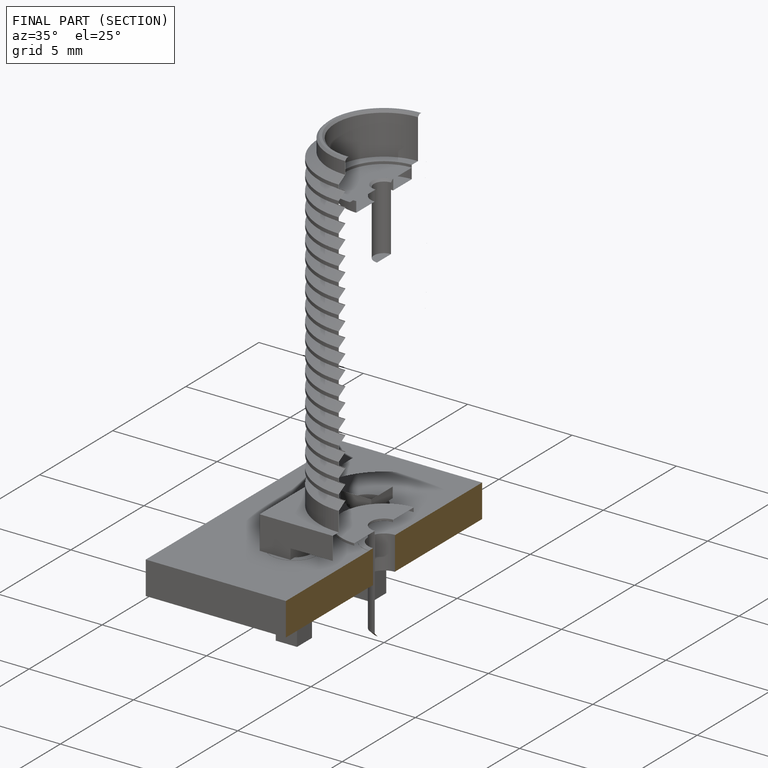
[diagram: finished part — half-section view (interior)]
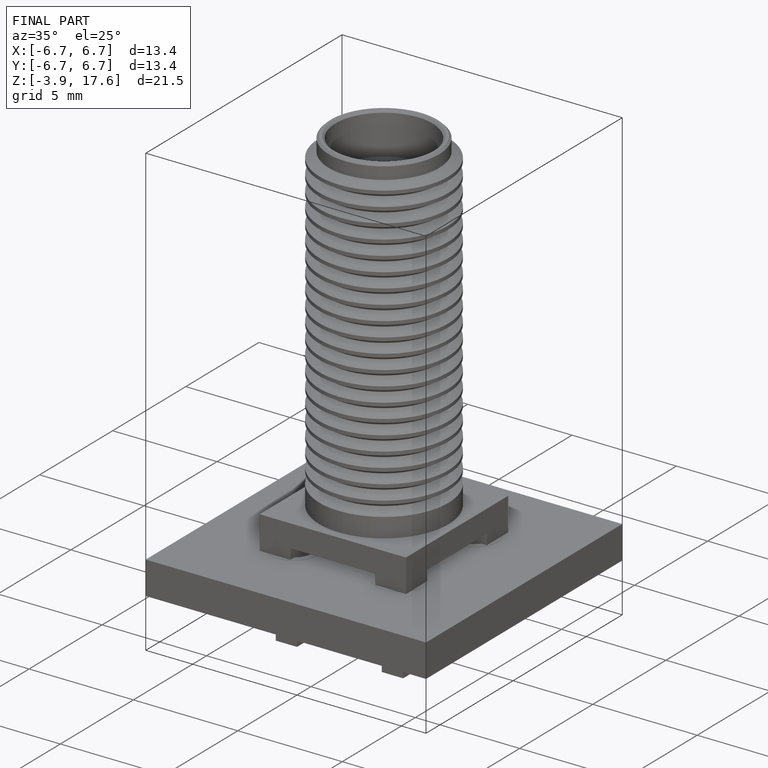
[diagram: finished part — iso view with bounding-box wireframe]
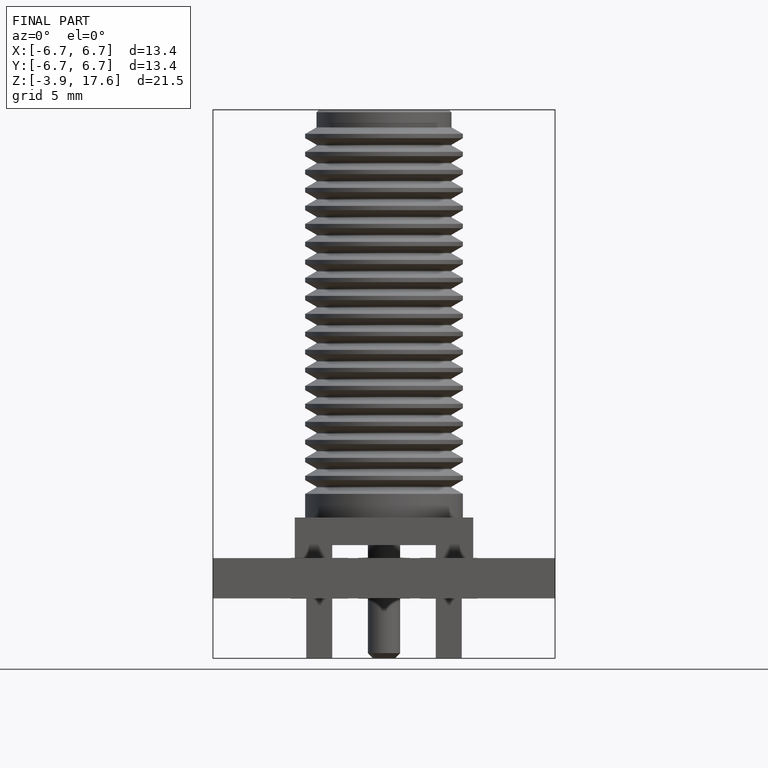
[diagram: finished part — front view with bounding-box wireframe]
